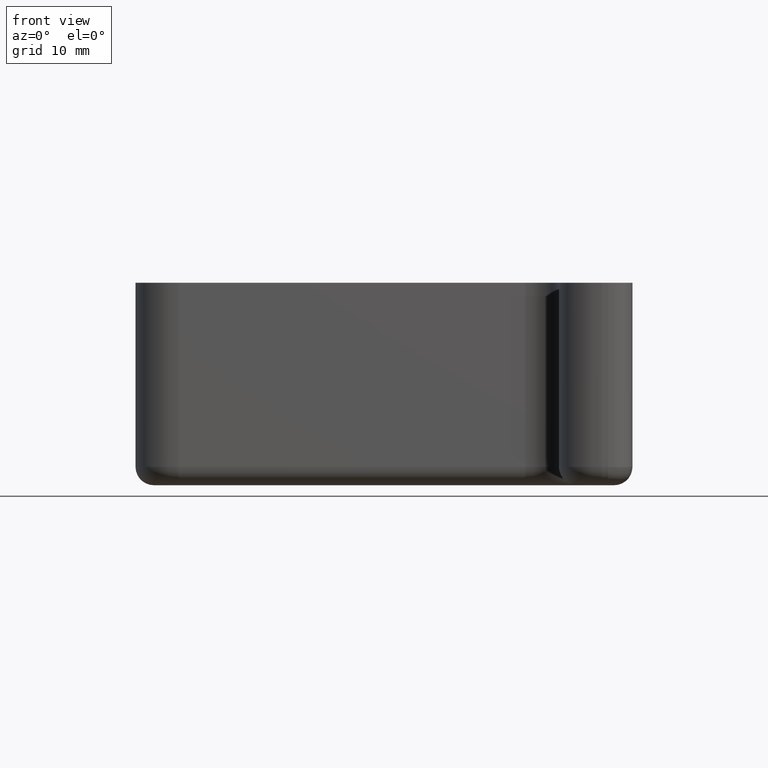
[diagram: clean part render]
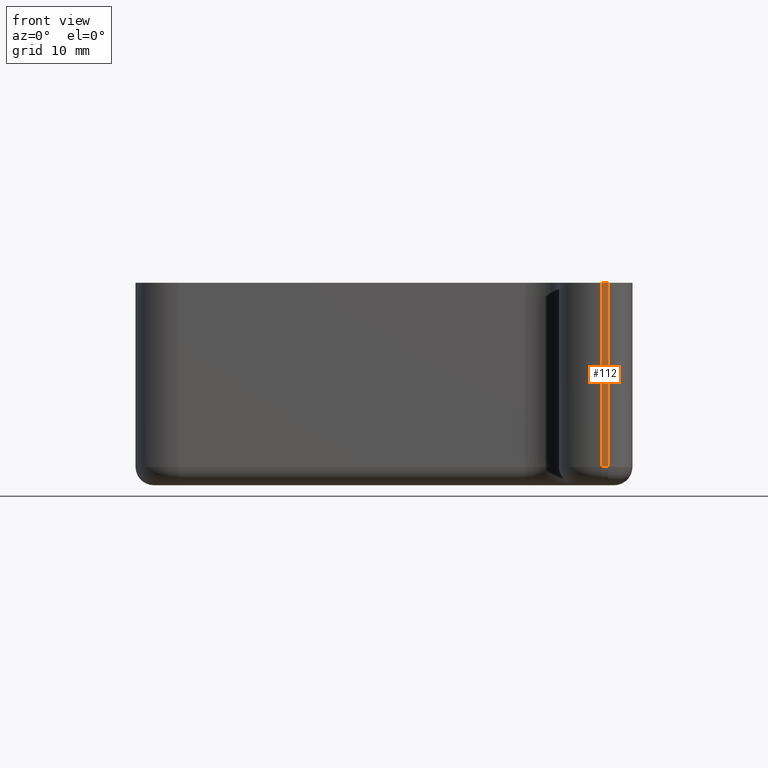
[diagram: same view with one face highlighted and labeled with its STEP entity id]
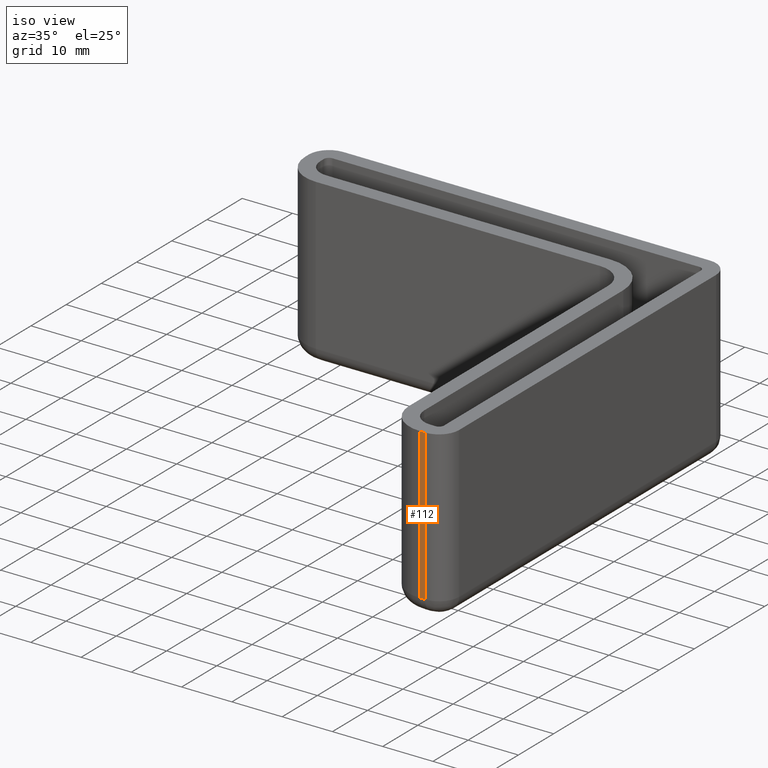
[diagram: same view with one face highlighted and labeled with its STEP entity id]
A machine part, front view. The second image highlights one B-rep face of the part: STEP entity #112.
A second angle (iso view) of the same face is appended — the face is thin or edge-on in the first view.
In plain terms, the highlighted planar face has unit normal (-0, -1, -0).
Its self-contained STEP definition (entity closure, byte-faithful):
#112 = ADVANCED_FACE( '', ( #190 ), #191, .T. );
#190 = FACE_OUTER_BOUND( '', #314, .T. );
#191 = PLANE( '', #315 );
#314 = EDGE_LOOP( '', ( #604, #605, #606, #607 ) );
#315 = AXIS2_PLACEMENT_3D( '', #608, #609, #610 );
#604 = ORIENTED_EDGE( '', *, *, #709, .F. );
#605 = ORIENTED_EDGE( '', *, *, #706, .F. );
#606 = ORIENTED_EDGE( '', *, *, #664, .F. );
#607 = ORIENTED_EDGE( '', *, *, #713, .F. );
#608 = CARTESIAN_POINT( '', ( -5.99999999999999, -78.0000000000000, -30.0000000000000 ) );
#609 = DIRECTION( '', ( -3.58732406867153E-049, -1.00000000000000, -8.65927457071936E-017 ) );
#610 = DIRECTION( '', ( -1.00000000000000, -3.10589904968477E-033, 3.58678896750442E-017 ) );
#664 = EDGE_CURVE( '', #790, #792, #793, .T. );
#706 = EDGE_CURVE( '', #792, #859, #862, .T. );
#709 = EDGE_CURVE( '', #859, #781, #865, .T. );
#713 = EDGE_CURVE( '', #781, #790, #869, .T. );
#781 = VERTEX_POINT( '', #955 );
#790 = VERTEX_POINT( '', #967 );
#792 = VERTEX_POINT( '', #969 );
#793 = LINE( '', #970, #971 );
#859 = VERTEX_POINT( '', #1063 );
#862 = LINE( '', #1067, #1068 );
#865 = LINE( '', #1072, #1073 );
#869 = LINE( '', #1078, #1079 );
#955 = CARTESIAN_POINT( '', ( -1.99999999999999, -78.0000000000000, -30.0000000000000 ) );
#967 = CARTESIAN_POINT( '', ( -1.99999999999998, -78.0000000000000, -6.92741965657548E-015 ) );
#969 = CARTESIAN_POINT( '', ( -0.999999999999997, -78.0000000000000, -6.84082691086829E-015 ) );
#970 = CARTESIAN_POINT( '', ( -21.7500000000000, -78.0000000000000, -5.16817943233894E-015 ) );
#971 = VECTOR( '', #1176, 1000.00000000000 );
#1063 = CARTESIAN_POINT( '', ( -0.999999999999990, -78.0000000000000, -30.0000000000000 ) );
#1067 = CARTESIAN_POINT( '', ( -0.999999999999990, -78.0000000000000, -30.0000000000000 ) );
#1068 = VECTOR( '', #1246, 1000.00000000000 );
#1072 = CARTESIAN_POINT( '', ( -21.7500000000000, -78.0000000000000, -30.0000000000000 ) );
#1073 = VECTOR( '', #1251, 1000.00000000000 );
#1078 = CARTESIAN_POINT( '', ( -1.99999999999999, -78.0000000000000, -30.0000000000000 ) );
#1079 = VECTOR( '', #1259, 1000.00000000000 );
#1176 = DIRECTION( '', ( 1.00000000000000, 0.000000000000000, -3.58678896750442E-017 ) );
#1246 = DIRECTION( '', ( -3.58678896750442E-017, 8.65927457071936E-017, -1.00000000000000 ) );
#1251 = DIRECTION( '', ( -1.00000000000000, 0.000000000000000, 3.58678896750442E-017 ) );
#1259 = DIRECTION( '', ( 3.58678896750442E-017, -8.65927457071936E-017, 1.00000000000000 ) );